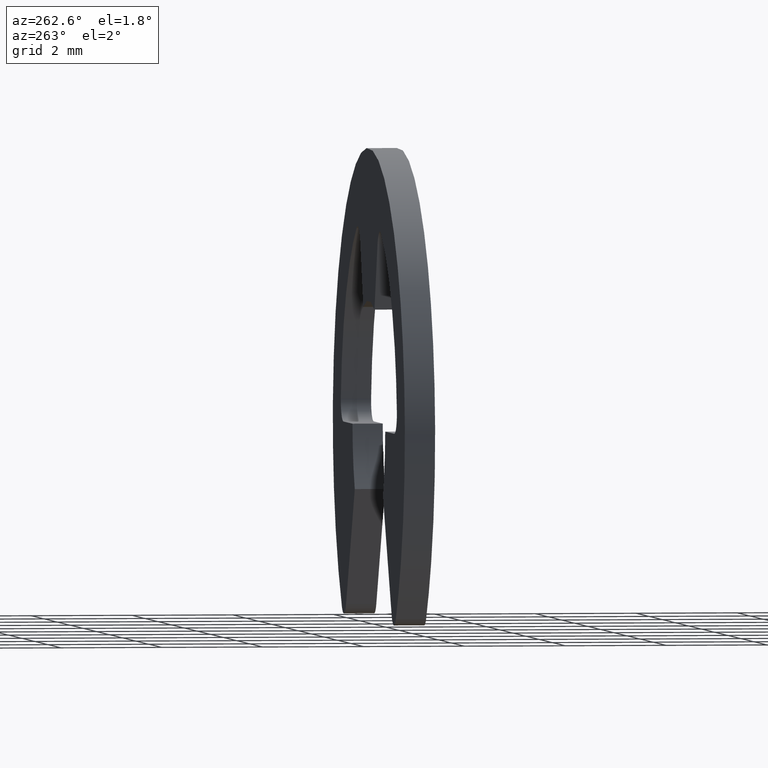
[diagram: clean part render]
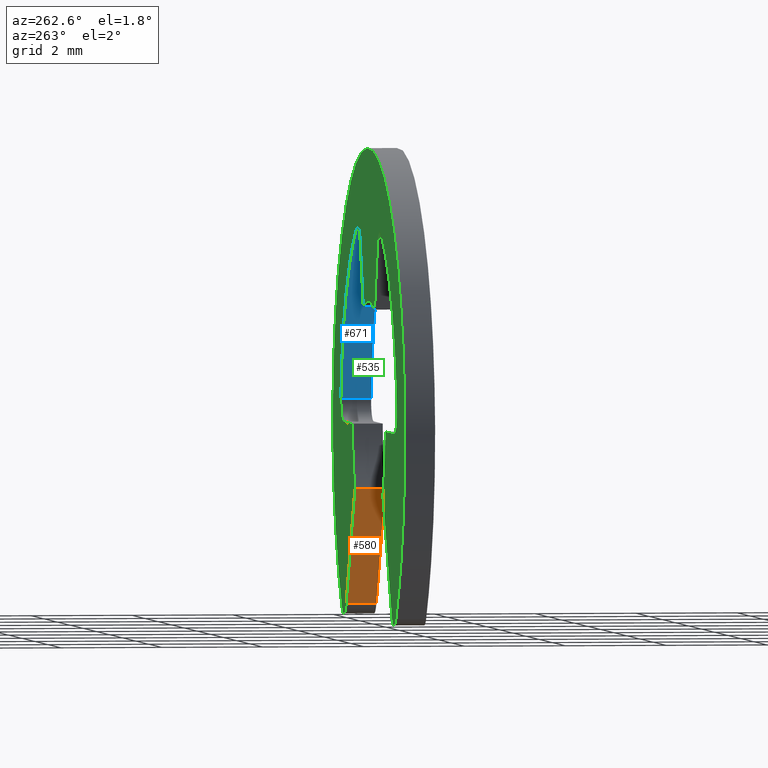
[diagram: same view with three faces highlighted in distinct colors, each labeled with its STEP entity id]
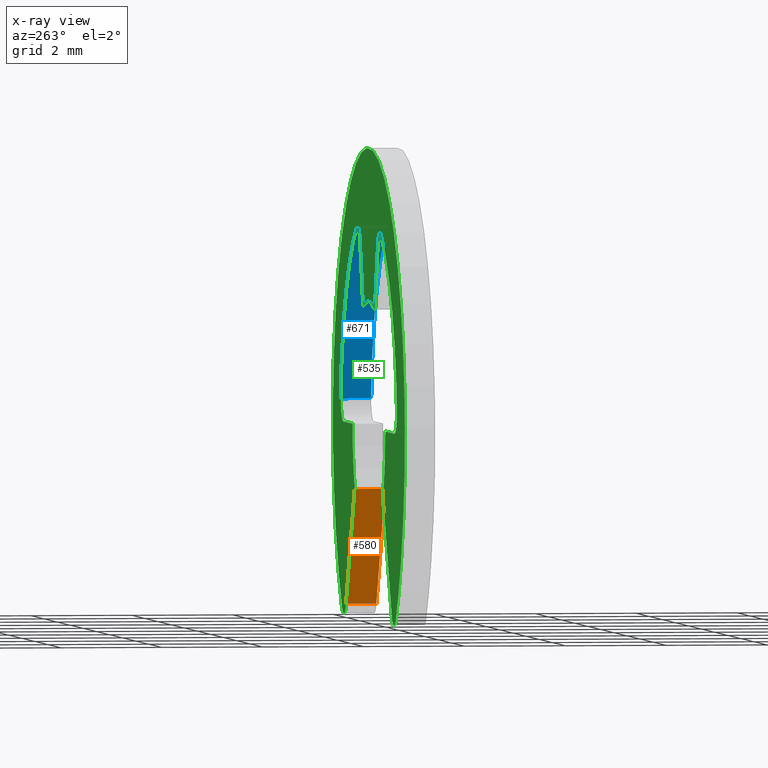
[diagram: x-ray of the same camera — body ghosted, the three highlighted faces saturated]
A machine part, auxiliary view with three faces highlighted in distinct colors.
The next image is the same camera in x-ray (body ghosted, the three faces saturated) — at least one of them is partly hidden behind the body in this view.
Their STEP definitions:

[orange] entity #580 — the highlighted face is a freeform B-spline surface patch.
#250=CARTESIAN_POINT('',(2.150001694623630,0.0,-1.275732226258912));
#251=VERTEX_POINT('',#250);
#265=CARTESIAN_POINT('',(3.477342186207930,0.0,-3.574747054572700));
#266=VERTEX_POINT('',#265);
#267=CARTESIAN_POINT('',(2.150001694623630,0.0,-1.275732226258912));
#268=CARTESIAN_POINT('',(3.477342186207930,0.0,-3.574747054572700));
#269=QUASI_UNIFORM_CURVE('',1,(#267,#268),.UNSPECIFIED.,.F.,.U.);
#270=EDGE_CURVE('',#251,#266,#269,.T.);
#316=CARTESIAN_POINT('',(3.477342186207930,0.600000000000045,-3.574747054572700));
#317=VERTEX_POINT('',#316);
#333=CARTESIAN_POINT('',(2.150001694623630,0.600000000000045,-1.275732226258912));
#334=VERTEX_POINT('',#333);
#335=CARTESIAN_POINT('',(2.150001694623630,0.600000000000045,-1.275732226258912));
#336=CARTESIAN_POINT('',(3.477342186207930,0.600000000000045,-3.574747054572700));
#337=QUASI_UNIFORM_CURVE('',1,(#335,#336),.UNSPECIFIED.,.F.,.U.);
#338=EDGE_CURVE('',#334,#317,#337,.T.);
#551=CARTESIAN_POINT('',(3.477342186207930,0.600000000000045,-3.574747054572700));
#552=CARTESIAN_POINT('',(3.477342186207930,0.0,-3.574747054572700));
#553=QUASI_UNIFORM_CURVE('',1,(#551,#552),.UNSPECIFIED.,.F.,.U.);
#554=EDGE_CURVE('',#317,#266,#553,.T.);
#565=CARTESIAN_POINT('',(3.543642690339935,-0.029969998837086,-3.689582916932701));
#566=CARTESIAN_POINT('',(2.083704174909472,-0.029969998837086,-1.160894777876824));
#567=CARTESIAN_POINT('',(3.543642690339935,0.629970014930385,-3.689582916932701));
#568=CARTESIAN_POINT('',(2.083704174909472,0.629970014930385,-1.160894777876824));
#569=B_SPLINE_SURFACE_WITH_KNOTS('',1,1,((#565,#567),(#566,#568)),.UNSPECIFIED.,.F.,.F.,.U.,(2,2),(2,2),(0.0,2.919877424386026),(0.041708334948495,0.958291687403247),.UNSPECIFIED.);
#570=ORIENTED_EDGE('',*,*,#270,.F.);
#571=CARTESIAN_POINT('',(2.150001694623630,0.600000000000045,-1.275732226258912));
#572=CARTESIAN_POINT('',(2.150001694623630,0.0,-1.275732226258912));
#573=QUASI_UNIFORM_CURVE('',1,(#571,#572),.UNSPECIFIED.,.F.,.U.);
#574=EDGE_CURVE('',#334,#251,#573,.T.);
#575=ORIENTED_EDGE('',*,*,#574,.F.);
#576=ORIENTED_EDGE('',*,*,#338,.T.);
#577=ORIENTED_EDGE('',*,*,#554,.T.);
#578=EDGE_LOOP('',(#570,#575,#576,#577));
#579=FACE_OUTER_BOUND('',#578,.T.);
#580=ADVANCED_FACE('',(#579),#569,.T.);

[blue] entity #671 — the highlighted face is a freeform B-spline surface patch.
#194=CARTESIAN_POINT('',(1.877359611078365,0.0,3.868529967698270));
#195=VERTEX_POINT('',#194);
#211=CARTESIAN_POINT('',(4.277323608182579,0.0,0.441024660176670));
#212=VERTEX_POINT('',#211);
#213=CARTESIAN_POINT('',(4.277323608182581,0.0,0.441024660176667));
#214=CARTESIAN_POINT('',(4.031719699543820,0.0,2.823039752624478));
#215=CARTESIAN_POINT('',(1.877359611078365,0.0,3.868529967698270));
#223=(BOUNDED_CURVE()B_SPLINE_CURVE(2,(#213,#214,#215),.UNSPECIFIED.,.F.,.U.)CURVE()GEOMETRIC_REPRESENTATION_ITEM()QUASI_UNIFORM_CURVE()RATIONAL_B_SPLINE_CURVE((1.0,0.873660465067616,1.0))REPRESENTATION_ITEM(''));
#224=EDGE_CURVE('',#212,#195,#223,.T.);
#362=CARTESIAN_POINT('',(4.277323608182579,0.600000000000045,0.441024660176670));
#363=VERTEX_POINT('',#362);
#379=CARTESIAN_POINT('',(1.877359611078365,0.600000000000045,3.868529967698270));
#380=VERTEX_POINT('',#379);
#381=CARTESIAN_POINT('',(4.277323608182581,0.600000000000045,0.441024660176667));
#382=CARTESIAN_POINT('',(4.031719699543820,0.600000000000045,2.823039752624478));
#383=CARTESIAN_POINT('',(1.877359611078365,0.600000000000045,3.868529967698270));
#391=(BOUNDED_CURVE()B_SPLINE_CURVE(2,(#381,#382,#383),.UNSPECIFIED.,.F.,.U.)CURVE()GEOMETRIC_REPRESENTATION_ITEM()QUASI_UNIFORM_CURVE()RATIONAL_B_SPLINE_CURVE((1.0,0.873660465067616,1.0))REPRESENTATION_ITEM(''));
#392=EDGE_CURVE('',#363,#380,#391,.T.);
#637=CARTESIAN_POINT('',(4.277323608182579,0.600000000000045,0.441024660176670));
#638=CARTESIAN_POINT('',(4.277323608182579,0.0,0.441024660176670));
#639=QUASI_UNIFORM_CURVE('',1,(#637,#638),.UNSPECIFIED.,.F.,.U.);
#640=EDGE_CURVE('',#363,#212,#639,.T.);
#647=CARTESIAN_POINT('',(1.775449823226349,0.615000000000046,3.916347523548633));
#648=CARTESIAN_POINT('',(1.775449823226349,-0.015375000000001,3.916347523548633));
#649=CARTESIAN_POINT('',(4.152172624987191,0.615000000000046,2.838876218238942));
#650=CARTESIAN_POINT('',(4.152172624987191,-0.015375000000001,2.838876218238942));
#651=CARTESIAN_POINT('',(4.293673750629004,0.615000000000046,0.233164583844650));
#652=CARTESIAN_POINT('',(4.293673750629004,-0.015375000000001,0.233164583844650));
#660=(BOUNDED_SURFACE()B_SPLINE_SURFACE(1,2,((#647,#649,#651),(#648,#650,#652)),.UNSPECIFIED.,.F.,.F.,.U.)B_SPLINE_SURFACE_WITH_KNOTS((2,2),(3,3),(0.0,1.0),(0.0,4.810804323903155),.UNSPECIFIED.)GEOMETRIC_REPRESENTATION_ITEM()RATIONAL_B_SPLINE_SURFACE(((1.0,0.853857442009774,0.997585555526634),(1.0,0.853857442009774,0.997585555526634)))REPRESENTATION_ITEM('')SURFACE());
#661=ORIENTED_EDGE('',*,*,#224,.T.);
#662=CARTESIAN_POINT('',(1.877359611078365,0.600000000000045,3.868529967698270));
#663=CARTESIAN_POINT('',(1.877359611078365,0.0,3.868529967698270));
#664=QUASI_UNIFORM_CURVE('',1,(#662,#663),.UNSPECIFIED.,.F.,.U.);
#665=EDGE_CURVE('',#380,#195,#664,.T.);
#666=ORIENTED_EDGE('',*,*,#665,.F.);
#667=ORIENTED_EDGE('',*,*,#392,.F.);
#668=ORIENTED_EDGE('',*,*,#640,.T.);
#669=EDGE_LOOP('',(#661,#666,#667,#668));
#670=FACE_OUTER_BOUND('',#669,.T.);
#671=ADVANCED_FACE('',(#670),#660,.F.);

[green] entity #535 — the highlighted face is a freeform B-spline surface patch.
#290=CARTESIAN_POINT('',(-6.049443227775925,0.600000000000000,5.963273416196367));
#291=CARTESIAN_POINT('',(6.049443589360941,0.600000000000000,5.963273416196367));
#292=CARTESIAN_POINT('',(-6.049443227775925,0.600000000000000,-4.238017091847224));
#293=CARTESIAN_POINT('',(6.049443589360941,0.600000000000000,-4.238017091847224));
#294=B_SPLINE_SURFACE_WITH_KNOTS('',1,1,((#290,#292),(#291,#293)),.UNSPECIFIED.,.F.,.F.,.U.,(2,2),(2,2),(0.0,12.098886817136870),(0.0,10.201290508043590),.UNSPECIFIED.);
#295=CARTESIAN_POINT('',(4.123654509424055,0.600000000000045,-3.639433127137615));
#296=VERTEX_POINT('',#295);
#297=CARTESIAN_POINT('',(-4.123653205531125,0.600000000000045,-3.639434604511100));
#298=VERTEX_POINT('',#297);
#299=CARTESIAN_POINT('',(4.123654509424050,0.600000000000045,-3.639433127137617));
#300=CARTESIAN_POINT('',(7.614998239861816,0.600000000000045,0.316428902752809));
#301=CARTESIAN_POINT('',(3.807498437289647,0.600000000000045,3.968999326031297));
#302=CARTESIAN_POINT('',(-0.000001365282522,0.600000000000045,7.621569749309786));
#303=CARTESIAN_POINT('',(-3.807499859255109,0.600000000000045,3.968997961925947));
#304=CARTESIAN_POINT('',(-7.614998353227692,0.600000000000045,0.316426174542111));
#305=CARTESIAN_POINT('',(-4.123653205531126,0.600000000000045,-3.639434604511100));
#313=(BOUNDED_CURVE()B_SPLINE_CURVE(2,(#299,#300,#301,#302,#303,#304,#305),.UNSPECIFIED.,.F.,.U.)B_SPLINE_CURVE_WITH_KNOTS((3,2,2,3),(0.0,0.333333333333333,0.666666666666667,1.0),.UNSPECIFIED.)CURVE()GEOMETRIC_REPRESENTATION_ITEM()RATIONAL_B_SPLINE_CURVE((1.0,0.721636117087034,1.0,0.721636117087034,1.0,0.721636117087034,1.0))REPRESENTATION_ITEM(''));
#314=EDGE_CURVE('',#296,#298,#313,.T.);
#315=ORIENTED_EDGE('',*,*,#314,.F.);
#316=CARTESIAN_POINT('',(3.477342186207930,0.600000000000045,-3.574747054572700));
#317=VERTEX_POINT('',#316);
#318=CARTESIAN_POINT('',(3.477342186207930,0.600000000000045,-3.574747054572700));
#319=CARTESIAN_POINT('',(3.579873729143400,0.600000000000045,-3.752336928228149));
#320=CARTESIAN_POINT('',(3.783917438515017,0.600000000000045,-3.772758612476947));
#321=CARTESIAN_POINT('',(3.987961147886634,0.600000000000045,-3.793180296725745));
#322=CARTESIAN_POINT('',(4.123654509424055,0.600000000000045,-3.639433127137615));
#330=(BOUNDED_CURVE()B_SPLINE_CURVE(2,(#318,#319,#320,#321,#322),.UNSPECIFIED.,.F.,.U.)B_SPLINE_CURVE_WITH_KNOTS((3,2,3),(0.0,0.500000000000000,1.0),.UNSPECIFIED.)CURVE()GEOMETRIC_REPRESENTATION_ITEM()RATIONAL_B_SPLINE_CURVE((1.0,0.889876253343318,1.0,0.889876253343318,1.0))REPRESENTATION_ITEM(''));
#331=EDGE_CURVE('',#317,#296,#330,.T.);
#332=ORIENTED_EDGE('',*,*,#331,.F.);
#333=CARTESIAN_POINT('',(2.150001694623630,0.600000000000045,-1.275732226258912));
#334=VERTEX_POINT('',#333);
#335=CARTESIAN_POINT('',(2.150001694623630,0.600000000000045,-1.275732226258912));
#336=CARTESIAN_POINT('',(3.477342186207930,0.600000000000045,-3.574747054572700));
#337=QUASI_UNIFORM_CURVE('',1,(#335,#336),.UNSPECIFIED.,.F.,.U.);
#338=EDGE_CURVE('',#334,#317,#337,.T.);
#339=ORIENTED_EDGE('',*,*,#338,.F.);
#340=CARTESIAN_POINT('',(2.500000000000000,0.600000000000045,0.0));
#341=VERTEX_POINT('',#340);
#342=CARTESIAN_POINT('',(2.150001694623630,0.600000000000045,-1.275732226258912));
#343=CARTESIAN_POINT('',(2.500000000000000,0.600000000000045,-0.685877291041595));
#344=CARTESIAN_POINT('',(2.500000000000000,0.600000000000045,0.0));
#352=(BOUNDED_CURVE()B_SPLINE_CURVE(2,(#342,#343,#344),.UNSPECIFIED.,.F.,.U.)CURVE()GEOMETRIC_REPRESENTATION_ITEM()QUASI_UNIFORM_CURVE()RATIONAL_B_SPLINE_CURVE((1.0,0.964365251823564,1.0))REPRESENTATION_ITEM(''));
#353=EDGE_CURVE('',#334,#341,#352,.T.);
#354=ORIENTED_EDGE('',*,*,#353,.T.);
#355=CARTESIAN_POINT('',(3.879433125663770,0.600000000000045,0.000002000000027));
#356=VERTEX_POINT('',#355);
#357=CARTESIAN_POINT('',(3.879433125663770,0.600000000000045,0.000002000000027));
#358=CARTESIAN_POINT('',(2.500000000000000,0.600000000000045,0.0));
#359=QUASI_UNIFORM_CURVE('',1,(#357,#358),.UNSPECIFIED.,.F.,.U.);
#360=EDGE_CURVE('',#356,#341,#359,.T.);
#361=ORIENTED_EDGE('',*,*,#360,.F.);
#362=CARTESIAN_POINT('',(4.277323608182579,0.600000000000045,0.441024660176670));
#363=VERTEX_POINT('',#362);
#364=CARTESIAN_POINT('',(3.879433125663770,0.600000000000045,0.000002000000028));
#365=CARTESIAN_POINT('',(4.057287077380157,0.600000000000045,0.000002055874494));
#366=CARTESIAN_POINT('',(4.176425529028260,0.600000000000045,0.132055293169272));
#367=CARTESIAN_POINT('',(4.295563980676364,0.600000000000045,0.264108530464050));
#368=CARTESIAN_POINT('',(4.277323608182579,0.600000000000045,0.441024660176670));
#376=(BOUNDED_CURVE()B_SPLINE_CURVE(2,(#364,#365,#366,#367,#368),.UNSPECIFIED.,.F.,.U.)B_SPLINE_CURVE_WITH_KNOTS((3,2,3),(0.0,0.500000000000000,1.0),.UNSPECIFIED.)CURVE()GEOMETRIC_REPRESENTATION_ITEM()RATIONAL_B_SPLINE_CURVE((1.0,0.913746956310715,1.0,0.913746956310715,1.0))REPRESENTATION_ITEM(''));
#377=EDGE_CURVE('',#356,#363,#376,.T.);
#378=ORIENTED_EDGE('',*,*,#377,.T.);
#379=CARTESIAN_POINT('',(1.877359611078365,0.600000000000045,3.868529967698270));
#380=VERTEX_POINT('',#379);
#381=CARTESIAN_POINT('',(4.277323608182581,0.600000000000045,0.441024660176667));
#382=CARTESIAN_POINT('',(4.031719699543820,0.600000000000045,2.823039752624478));
#383=CARTESIAN_POINT('',(1.877359611078365,0.600000000000045,3.868529967698270));
#391=(BOUNDED_CURVE()B_SPLINE_CURVE(2,(#381,#382,#383),.UNSPECIFIED.,.F.,.U.)CURVE()GEOMETRIC_REPRESENTATION_ITEM()QUASI_UNIFORM_CURVE()RATIONAL_B_SPLINE_CURVE((1.0,0.873660465067616,1.0))REPRESENTATION_ITEM(''));
#392=EDGE_CURVE('',#363,#380,#391,.T.);
#393=ORIENTED_EDGE('',*,*,#392,.T.);
#394=CARTESIAN_POINT('',(1.326843000000060,0.600000000000045,3.645477000000000));
#395=VERTEX_POINT('',#394);
#396=CARTESIAN_POINT('',(1.877359611078365,0.600000000000045,3.868529967698270));
#397=CARTESIAN_POINT('',(1.717351100605900,0.600000000000045,3.946180778456449));
#398=CARTESIAN_POINT('',(1.552512439643795,0.600000000000045,3.879393052565692));
#399=CARTESIAN_POINT('',(1.387673778681691,0.600000000000045,3.812605326674935));
#400=CARTESIAN_POINT('',(1.326843000000060,0.600000000000045,3.645477000000000));
#408=(BOUNDED_CURVE()B_SPLINE_CURVE(2,(#396,#397,#398,#399,#400),.UNSPECIFIED.,.F.,.U.)B_SPLINE_CURVE_WITH_KNOTS((3,2,3),(0.0,0.500000000000000,1.0),.UNSPECIFIED.)CURVE()GEOMETRIC_REPRESENTATION_ITEM()RATIONAL_B_SPLINE_CURVE((1.0,0.913746400642459,1.0,0.913746400642459,1.0))REPRESENTATION_ITEM(''));
#409=EDGE_CURVE('',#380,#395,#408,.T.);
#410=ORIENTED_EDGE('',*,*,#409,.T.);
#411=CARTESIAN_POINT('',(0.855049251264791,0.600000000000045,2.349231954897500));
#412=VERTEX_POINT('',#411);
#413=CARTESIAN_POINT('',(0.855049251264791,0.600000000000045,2.349231954897500));
#414=CARTESIAN_POINT('',(1.326843000000060,0.600000000000045,3.645477000000000));
#415=QUASI_UNIFORM_CURVE('',1,(#413,#414),.UNSPECIFIED.,.F.,.U.);
#416=EDGE_CURVE('',#412,#395,#415,.T.);
#417=ORIENTED_EDGE('',*,*,#416,.F.);
#418=CARTESIAN_POINT('',(-0.855049000000000,0.600000000000045,2.349236000000000));
#419=VERTEX_POINT('',#418);
#420=CARTESIAN_POINT('',(0.855049251264791,0.600000000000045,2.349231954897500));
#421=CARTESIAN_POINT('',(0.000000226440876,0.600000000000045,2.660445406799210));
#422=CARTESIAN_POINT('',(-0.855049000000000,0.600000000000045,2.349236000000000));
#430=(BOUNDED_CURVE()B_SPLINE_CURVE(2,(#420,#421,#422),.UNSPECIFIED.,.F.,.U.)CURVE()GEOMETRIC_REPRESENTATION_ITEM()QUASI_UNIFORM_CURVE()RATIONAL_B_SPLINE_CURVE((1.0,0.939692892746932,1.0))REPRESENTATION_ITEM(''));
#431=EDGE_CURVE('',#412,#419,#430,.T.);
#432=ORIENTED_EDGE('',*,*,#431,.T.);
#433=CARTESIAN_POINT('',(-1.326844242992114,0.600000000000045,3.645475857685575));
#434=VERTEX_POINT('',#433);
#435=CARTESIAN_POINT('',(-1.326844242992114,0.600000000000045,3.645475857685575));
#436=CARTESIAN_POINT('',(-0.855049000000000,0.600000000000045,2.349236000000000));
#437=QUASI_UNIFORM_CURVE('',1,(#435,#436),.UNSPECIFIED.,.F.,.U.);
#438=EDGE_CURVE('',#434,#419,#437,.T.);
#439=ORIENTED_EDGE('',*,*,#438,.F.);
#440=CARTESIAN_POINT('',(-1.877360747905205,0.600000000000045,3.868528999791110));
#441=VERTEX_POINT('',#440);
#442=CARTESIAN_POINT('',(-1.326844242992111,0.600000000000045,3.645475857685576));
#443=CARTESIAN_POINT('',(-1.387674671427417,0.600000000000045,3.812604978960845));
#444=CARTESIAN_POINT('',(-1.552513541364013,0.600000000000045,3.879392935658835));
#445=CARTESIAN_POINT('',(-1.717352411300609,0.600000000000045,3.946180892356825));
#446=CARTESIAN_POINT('',(-1.877360747905205,0.600000000000045,3.868528999791110));
#454=(BOUNDED_CURVE()B_SPLINE_CURVE(2,(#442,#443,#444,#445,#446),.UNSPECIFIED.,.F.,.U.)B_SPLINE_CURVE_WITH_KNOTS((3,2,3),(0.0,0.500000000000000,1.0),.UNSPECIFIED.)CURVE()GEOMETRIC_REPRESENTATION_ITEM()RATIONAL_B_SPLINE_CURVE((1.0,0.913745869009801,1.0,0.913745869009801,1.0))REPRESENTATION_ITEM(''));
#455=EDGE_CURVE('',#434,#441,#454,.T.);
#456=ORIENTED_EDGE('',*,*,#455,.T.);
#457=CARTESIAN_POINT('',(-4.277323619757000,0.600000000000045,0.441027049779827));
#458=VERTEX_POINT('',#457);
#459=CARTESIAN_POINT('',(-1.877360747905204,0.600000000000045,3.868528999791111));
#460=CARTESIAN_POINT('',(-4.031718396501105,0.600000000000045,2.823039490305286));
#461=CARTESIAN_POINT('',(-4.277323619757000,0.600000000000045,0.441027049779827));
#469=(BOUNDED_CURVE()B_SPLINE_CURVE(2,(#459,#460,#461),.UNSPECIFIED.,.F.,.U.)CURVE()GEOMETRIC_REPRESENTATION_ITEM()QUASI_UNIFORM_CURVE()RATIONAL_B_SPLINE_CURVE((1.0,0.873660681245324,1.0))REPRESENTATION_ITEM(''));
#470=EDGE_CURVE('',#441,#458,#469,.T.);
#471=ORIENTED_EDGE('',*,*,#470,.T.);
#472=CARTESIAN_POINT('',(-3.879433000000055,0.600000000000045,0.0));
#473=VERTEX_POINT('',#472);
#474=CARTESIAN_POINT('',(-4.277323619757000,0.600000000000045,0.441027049779827));
#475=CARTESIAN_POINT('',(-4.295564864633802,0.600000000000045,0.264109855887720));
#476=CARTESIAN_POINT('',(-4.176426282678241,0.600000000000045,0.132055128518400));
#477=CARTESIAN_POINT('',(-4.057287700722681,0.600000000000045,0.000000401149081));
#478=CARTESIAN_POINT('',(-3.879433000000055,0.600000000000045,0.0));
#486=(BOUNDED_CURVE()B_SPLINE_CURVE(2,(#474,#475,#476,#477,#478),.UNSPECIFIED.,.F.,.U.)B_SPLINE_CURVE_WITH_KNOTS((3,2,3),(0.0,0.500000000000000,1.0),.UNSPECIFIED.)CURVE()GEOMETRIC_REPRESENTATION_ITEM()RATIONAL_B_SPLINE_CURVE((1.0,0.913746321115442,1.0,0.913746321115442,1.0))REPRESENTATION_ITEM(''));
#487=EDGE_CURVE('',#458,#473,#486,.T.);
#488=ORIENTED_EDGE('',*,*,#487,.T.);
#489=CARTESIAN_POINT('',(-2.499999999999815,0.600000000000045,0.000000959931088));
#490=VERTEX_POINT('',#489);
#491=CARTESIAN_POINT('',(-2.499999999999815,0.600000000000045,0.000000959931088));
#492=CARTESIAN_POINT('',(-3.879433000000055,0.600000000000045,0.0));
#493=QUASI_UNIFORM_CURVE('',1,(#491,#492),.UNSPECIFIED.,.F.,.U.);
#494=EDGE_CURVE('',#490,#473,#493,.T.);
#495=ORIENTED_EDGE('',*,*,#494,.F.);
#496=CARTESIAN_POINT('',(-2.150000000000000,0.600000000000045,-1.275733999999964));
#497=VERTEX_POINT('',#496);
#498=CARTESIAN_POINT('',(-2.499999999999816,0.600000000000045,0.000000959931088));
#499=CARTESIAN_POINT('',(-2.500000263358481,0.600000000000045,-0.685878132241590));
#500=CARTESIAN_POINT('',(-2.150000000000000,0.600000000000045,-1.275733999999964));
#508=(BOUNDED_CURVE()B_SPLINE_CURVE(2,(#498,#499,#500),.UNSPECIFIED.,.F.,.U.)CURVE()GEOMETRIC_REPRESENTATION_ITEM()QUASI_UNIFORM_CURVE()RATIONAL_B_SPLINE_CURVE((1.0,0.964365074552909,1.0))REPRESENTATION_ITEM(''));
#509=EDGE_CURVE('',#490,#497,#508,.T.);
#510=ORIENTED_EDGE('',*,*,#509,.T.);
#511=CARTESIAN_POINT('',(-3.477341278499450,0.600000000000045,-3.574748946463711));
#512=VERTEX_POINT('',#511);
#513=CARTESIAN_POINT('',(-3.477341278499450,0.600000000000045,-3.574748946463711));
#514=CARTESIAN_POINT('',(-2.150000000000000,0.600000000000045,-1.275733999999964));
#515=QUASI_UNIFORM_CURVE('',1,(#513,#514),.UNSPECIFIED.,.F.,.U.);
#516=EDGE_CURVE('',#512,#497,#515,.T.);
#517=ORIENTED_EDGE('',*,*,#516,.F.);
#518=CARTESIAN_POINT('',(-4.123653205531123,0.600000000000045,-3.639434604511099));
#519=CARTESIAN_POINT('',(-3.987959944759057,0.600000000000045,-3.793181548901342));
#520=CARTESIAN_POINT('',(-3.783916458010689,0.600000000000045,-3.772760005280417));
#521=CARTESIAN_POINT('',(-3.579872971262322,0.600000000000045,-3.752338461659492));
#522=CARTESIAN_POINT('',(-3.477341278499449,0.600000000000045,-3.574748946463711));
#530=(BOUNDED_CURVE()B_SPLINE_CURVE(2,(#518,#519,#520,#521,#522),.UNSPECIFIED.,.F.,.U.)B_SPLINE_CURVE_WITH_KNOTS((3,2,3),(0.0,0.500000000000000,1.0),.UNSPECIFIED.)CURVE()GEOMETRIC_REPRESENTATION_ITEM()RATIONAL_B_SPLINE_CURVE((1.0,0.889876466052607,1.0,0.889876466052607,1.0))REPRESENTATION_ITEM(''));
#531=EDGE_CURVE('',#298,#512,#530,.T.);
#532=ORIENTED_EDGE('',*,*,#531,.F.);
#533=EDGE_LOOP('',(#315,#332,#339,#354,#361,#378,#393,#410,#417,#432,#439,#456,#471,#488,#495,#510,#517,#532));
#534=FACE_OUTER_BOUND('',#533,.T.);
#535=ADVANCED_FACE('',(#534),#294,.T.);